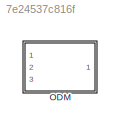
MODEL slx_7e24537c816f
KIND library
CONFIG AbsTol = auto
CONFIG EnableMultiTasking = off
CONFIG FixedStep = auto
CONFIG MaxStep = auto
CONFIG MinStep = auto
CONFIG RelTol = 1e-3
CONFIG SampleTimeConstraint = Unconstrained
CONFIG SolverName = VariableStepAuto
CONFIG StartTime = 0.0
CONFIG StopTime = 10.0
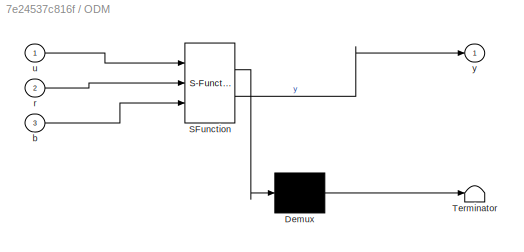
BLOCK [SubSystem] ODM
  ErrorFcn = Stateflow.Translate.translate
  PermitHierarchicalResolution = ExplicitOnly
  Ports = [3, 1]
  RequestExecContextInheritance = off
  SFBlockType = MATLAB Function
  TreatAsAtomicUnit = on
BLOCK [Demux] ODM/ Demux 
  Outputs = 1
  Ports = [1, 1]
BLOCK [S-Function] ODM/ SFunction 
  EnableBusSupport = off
  FunctionName = sf_sfun
  PortCounts = [3 2]
  Ports = [3, 2]
  SFcnIsStateOwnerBlock = off
  SFunctionDeploymentMode = off
  Tag = Stateflow S-Function 4
BLOCK [Terminator] ODM/ Terminator 
BLOCK [Inport] ODM/b
  Port = 3
BLOCK [Inport] ODM/r
  Port = 2
BLOCK [Inport] ODM/u
BLOCK [Outport] ODM/y
CHART ODM states=1 transitions=1
  STATE_LABEL 'eML_blk_kernel()'
  STATE_LABEL 'SCRIPT:\nfunction y = odometry_wheel(u,r,b)\npersistent state_current;\nif isempty(state_current)\n   state_current=zeros(3,1);%(x,y,theta)\nend\nv=(u(1)+u(2))*r/2;\nw=(u(2)-u(1))*r/2/b;\ndt=0.01;\nd=v*dt;\ndx=d*cos(state_current(3)+w*dt/2);\ndy=d*sin(state_current(3)+w*dt/2);\nstate_current(3)=state_current(3)+w*dt;\nstate_current(1)=state_current(1)+dx;\nstate_current(2)=state_current(2)+dy;\ny = state_current...<+2ch>'
CHART  states=0 transitions=0
